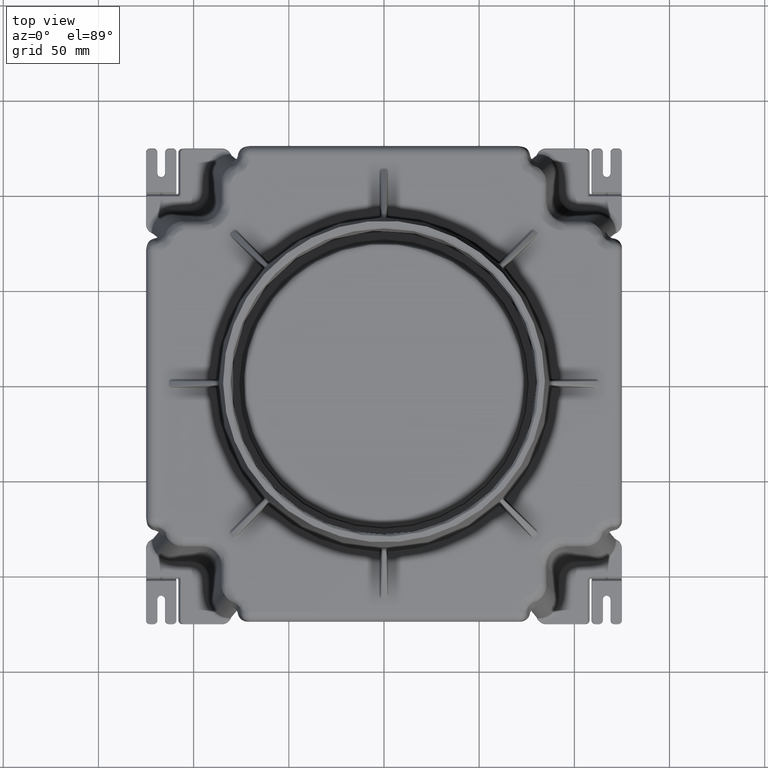
[diagram: clean part render]
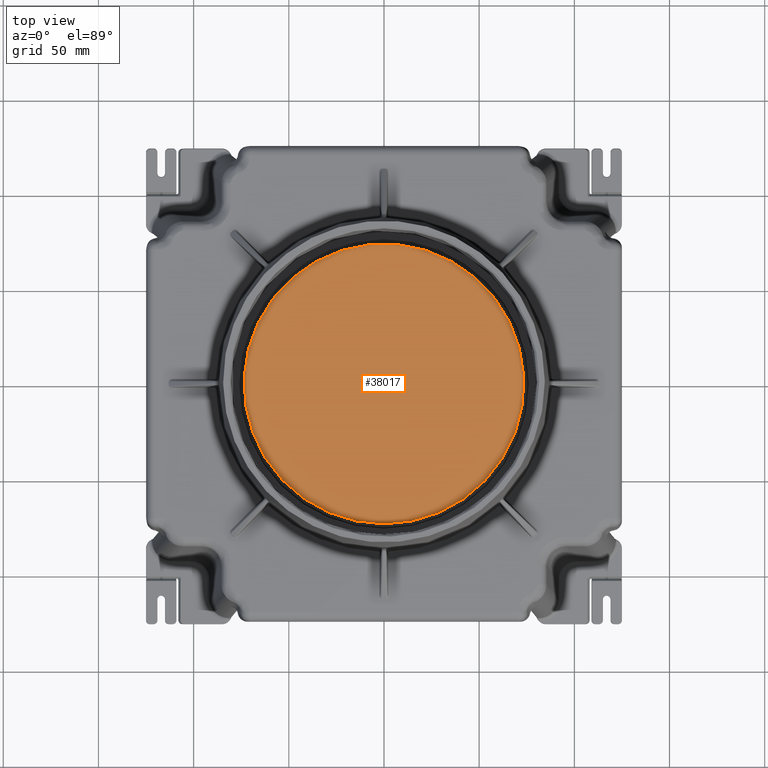
[diagram: same view with one face highlighted and labeled with its STEP entity id]
A machine part, top view. The second image highlights one B-rep face of the part: STEP entity #38017.
In plain terms, the highlighted planar face has unit normal (0, 0, 1).
Its self-contained STEP definition (entity closure, byte-faithful):
#38001=CARTESIAN_POINT('',(0.0,-36.750000000000014,-2.000000000000009));
#38002=DIRECTION('',(0.0,0.0,1.0));
#38003=DIRECTION('',(1.0,0.0,0.0));
#38004=AXIS2_PLACEMENT_3D('',#38001,#38002,#38003);
#38005=PLANE('',#38004);
#38006=CARTESIAN_POINT('',(0.0,-73.500000000000028,-2.000000000000018));
#38007=VERTEX_POINT('',#38006);
#38008=CARTESIAN_POINT('',(0.0,0.0,-2.000000000000018));
#38009=DIRECTION('',(0.0,0.0,1.0));
#38010=DIRECTION('',(0.0,-1.0,0.0));
#38011=AXIS2_PLACEMENT_3D('',#38008,#38009,#38010);
#38012=CIRCLE('',#38011,73.500000000000028);
#38013=EDGE_CURVE('',#38007,#38007,#38012,.T.);
#38014=ORIENTED_EDGE('',*,*,#38013,.T.);
#38015=EDGE_LOOP('',(#38014));
#38016=FACE_OUTER_BOUND('',#38015,.T.);
#38017=ADVANCED_FACE('',(#38016),#38005,.T.);